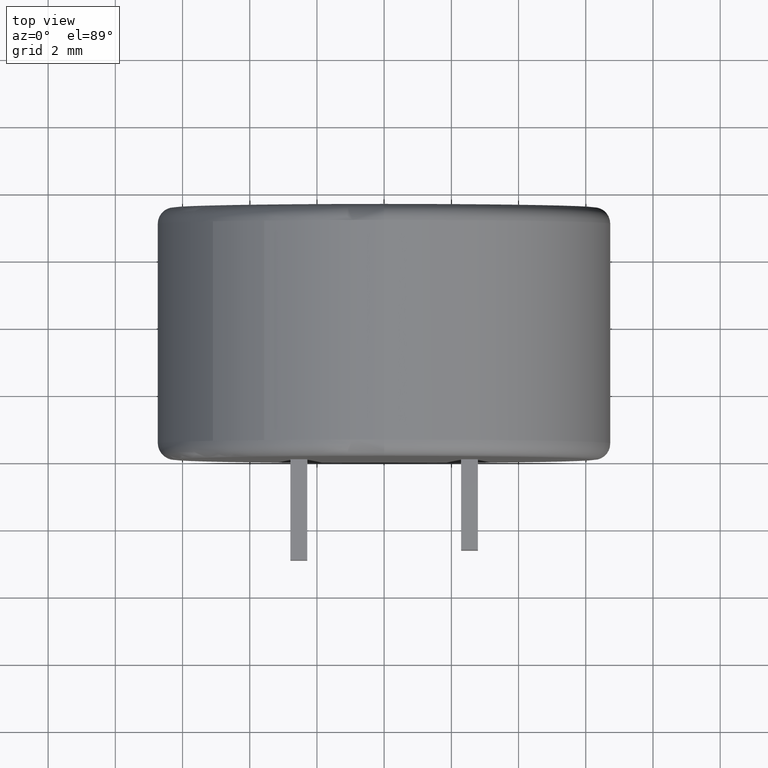
[diagram: clean part render]
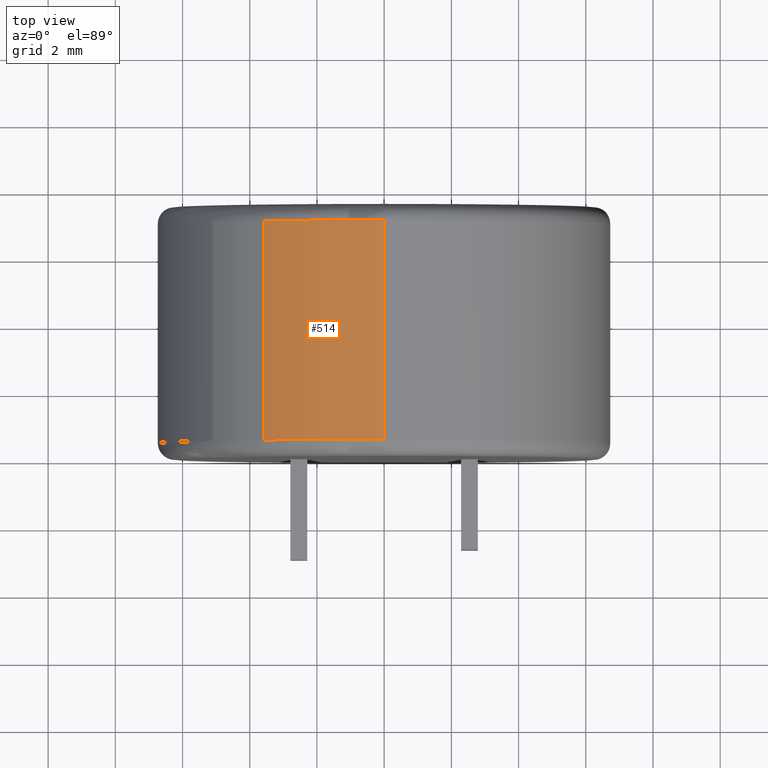
[diagram: same view with one face highlighted and labeled with its STEP entity id]
A machine part, top view. The second image highlights one B-rep face of the part: STEP entity #514.
In plain terms, the highlighted cylindrical surface (partial cylindrical patch) has radius 6.75 mm, axis along (-0, -1, -0).
Its self-contained STEP definition (entity closure, byte-faithful):
#23 = DIRECTION ( 'NONE',  ( 0.0000000000000000000, 0.0000000000000000000, -1.000000000000000000 ) ) ;
#74 = CARTESIAN_POINT ( 'NONE',  ( -3.573849647182955700, 7.016250000000000300, 5.726263939020822300 ) ) ;
#141 = CARTESIAN_POINT ( 'NONE',  ( 8.266365894244634300E-016, 7.016250000000000300, 6.750000000000000000 ) ) ;
#158 = ORIENTED_EDGE ( 'NONE', *, *, #1410, .T. ) ;
#209 = AXIS2_PLACEMENT_3D ( 'NONE', #869, #2341, #23 ) ;
#216 = CYLINDRICAL_SURFACE ( 'NONE', #209, 6.750000000000000000 ) ;
#279 = EDGE_CURVE ( 'NONE', #1586, #967, #2746, .T. ) ;
#284 = CIRCLE ( 'NONE', #854, 6.750000000000000000 ) ;
#514 = ADVANCED_FACE ( 'NONE', ( #1932 ), #216, .T. ) ;
#527 = DIRECTION ( 'NONE',  ( 0.0000000000000000000, 1.000000000000000000, 0.0000000000000000000 ) ) ;
#651 = ORIENTED_EDGE ( 'NONE', *, *, #1407, .F. ) ;
#678 = EDGE_CURVE ( 'NONE', #1595, #967, #284, .T. ) ;
#683 = ORIENTED_EDGE ( 'NONE', *, *, #678, .T. ) ;
#802 = DIRECTION ( 'NONE',  ( 0.0000000000000000000, 1.000000000000000000, 0.0000000000000000000 ) ) ;
#854 = AXIS2_PLACEMENT_3D ( 'NONE', #1618, #802, #1203 ) ;
#869 = CARTESIAN_POINT ( 'NONE',  ( 0.0000000000000000000, 7.500000000000000000, 0.0000000000000000000 ) ) ;
#967 = VERTEX_POINT ( 'NONE', #1136 ) ;
#1136 = CARTESIAN_POINT ( 'NONE',  ( 8.266365894244634300E-016, 0.4837499999999997900, 6.750000000000000000 ) ) ;
#1189 = DIRECTION ( 'NONE',  ( -0.0000000000000000000, -1.000000000000000000, -0.0000000000000000000 ) ) ;
#1203 = DIRECTION ( 'NONE',  ( 0.0000000000000000000, 0.0000000000000000000, 1.000000000000000000 ) ) ;
#1256 = CARTESIAN_POINT ( 'NONE',  ( -3.573849647182954400, 0.4837499999999997900, 5.726263939020823200 ) ) ;
#1337 = CARTESIAN_POINT ( 'NONE',  ( 0.0000000000000000000, 7.016250000000000300, 0.0000000000000000000 ) ) ;
#1379 = EDGE_LOOP ( 'NONE', ( #1579, #158, #651, #683 ) ) ;
#1407 = EDGE_CURVE ( 'NONE', #1595, #2120, #1471, .T. ) ;
#1410 = EDGE_CURVE ( 'NONE', #1586, #2120, #1865, .T. ) ;
#1471 = LINE ( 'NONE', #1967, #2473 ) ;
#1579 = ORIENTED_EDGE ( 'NONE', *, *, #279, .F. ) ;
#1586 = VERTEX_POINT ( 'NONE', #141 ) ;
#1595 = VERTEX_POINT ( 'NONE', #1256 ) ;
#1618 = CARTESIAN_POINT ( 'NONE',  ( 0.0000000000000000000, 0.4837499999999997900, 0.0000000000000000000 ) ) ;
#1762 = DIRECTION ( 'NONE',  ( 0.0000000000000000000, 0.0000000000000000000, 1.000000000000000000 ) ) ;
#1783 = AXIS2_PLACEMENT_3D ( 'NONE', #1337, #2606, #1762 ) ;
#1803 = VECTOR ( 'NONE', #1189, 1000.000000000000000 ) ;
#1865 = CIRCLE ( 'NONE', #1783, 6.750000000000000000 ) ;
#1932 = FACE_OUTER_BOUND ( 'NONE', #1379, .T. ) ;
#1967 = CARTESIAN_POINT ( 'NONE',  ( -3.573849647182955700, 0.4837500000000006800, 5.726263939020822300 ) ) ;
#2120 = VERTEX_POINT ( 'NONE', #74 ) ;
#2341 = DIRECTION ( 'NONE',  ( -0.0000000000000000000, -1.000000000000000000, -0.0000000000000000000 ) ) ;
#2473 = VECTOR ( 'NONE', #527, 1000.000000000000000 ) ;
#2474 = CARTESIAN_POINT ( 'NONE',  ( 8.266365894244634300E-016, 7.500000000000000000, 6.750000000000000000 ) ) ;
#2606 = DIRECTION ( 'NONE',  ( -0.0000000000000000000, -1.000000000000000000, -0.0000000000000000000 ) ) ;
#2746 = LINE ( 'NONE', #2474, #1803 ) ;